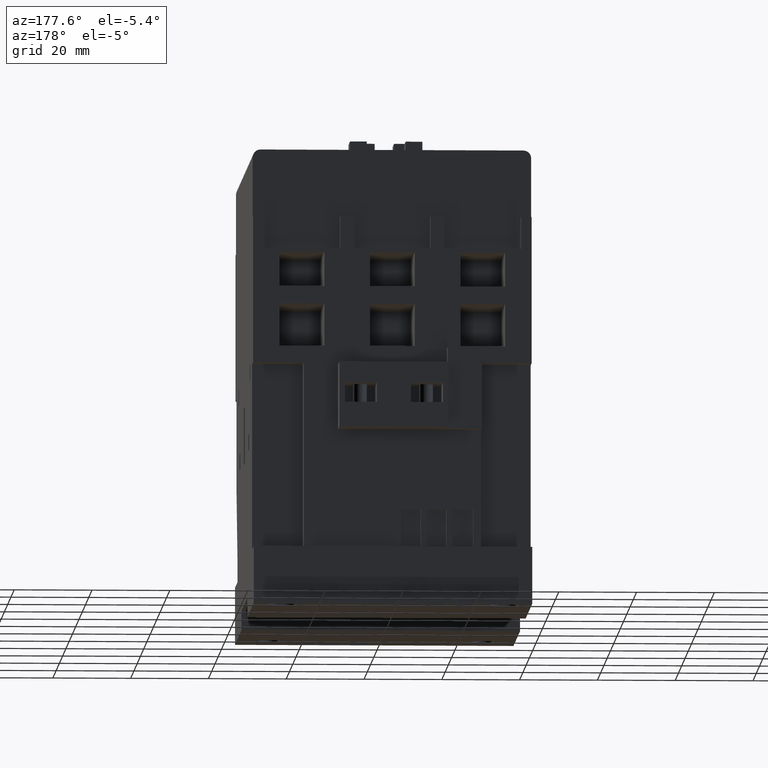
[diagram: clean part render]
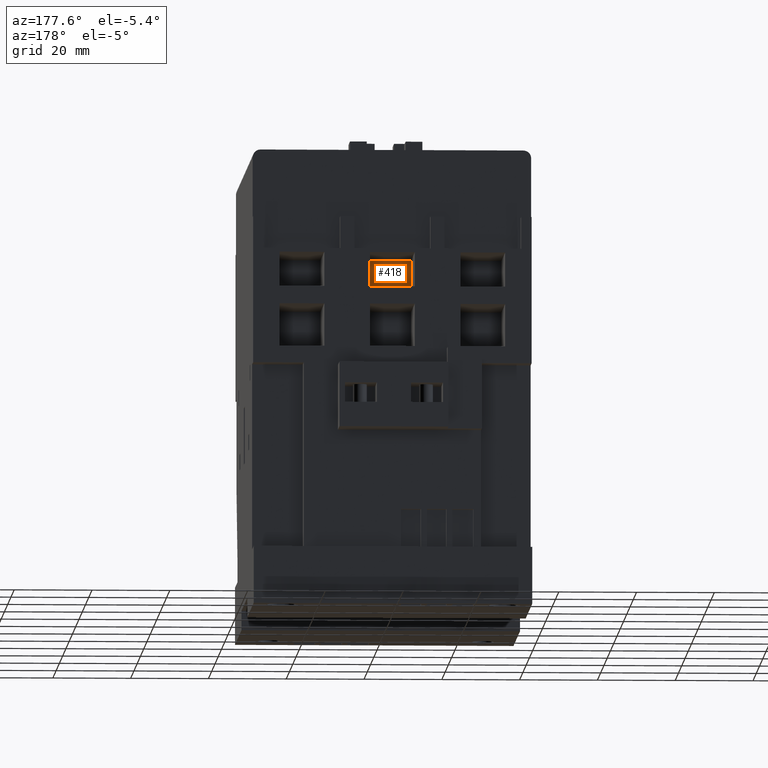
[diagram: same view with one face highlighted and labeled with its STEP entity id]
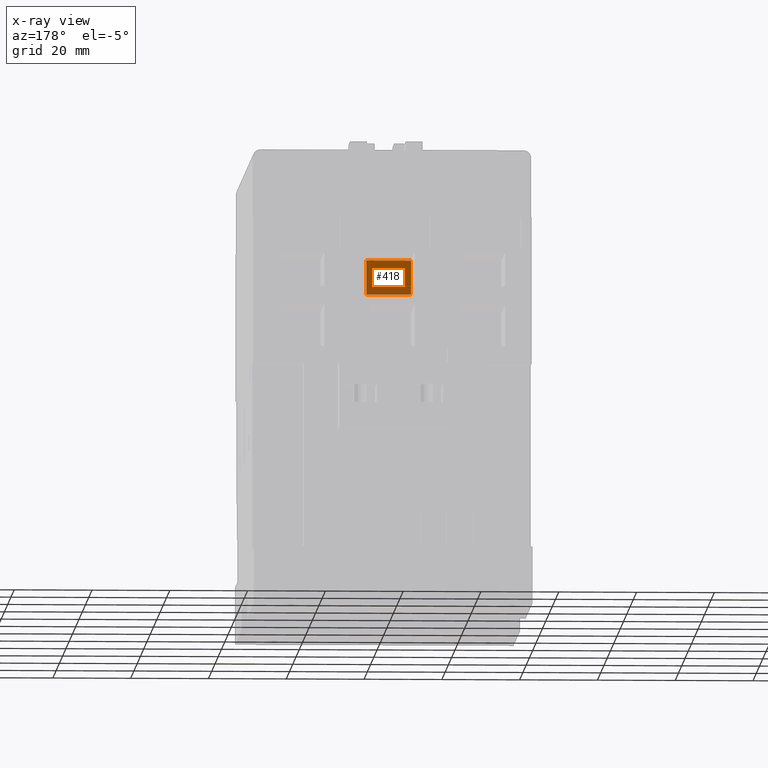
[diagram: x-ray of the same camera — body ghosted, the highlighted face saturated]
A machine part, auxiliary view. The second image highlights one B-rep face of the part: STEP entity #418.
The next image is the same camera in x-ray: the body ghosted, the highlighted face saturated — about 31% of this face is hidden behind the body in this view.
In plain terms, the highlighted planar face has unit normal (0, -1, 0).
Its self-contained STEP definition (entity closure, byte-faithful):
#418=ADVANCED_FACE('',(#1109),#782,.F.);
#782=PLANE('',#7298);
#1109=FACE_OUTER_BOUND('',#1523,.T.);
#1523=EDGE_LOOP('',(#2685,#2686,#2687,#2688));
#2685=ORIENTED_EDGE('',*,*,#4949,.T.);
#2686=ORIENTED_EDGE('',*,*,#4951,.T.);
#2687=ORIENTED_EDGE('',*,*,#4953,.T.);
#2688=ORIENTED_EDGE('',*,*,#4954,.T.);
#4180=VERTEX_POINT('',#10513);
#4181=VERTEX_POINT('',#10515);
#4182=VERTEX_POINT('',#10519);
#4183=VERTEX_POINT('',#10523);
#4949=EDGE_CURVE('',#4180,#4181,#5867,.T.);
#4951=EDGE_CURVE('',#4181,#4182,#5869,.T.);
#4953=EDGE_CURVE('',#4182,#4183,#5871,.T.);
#4954=EDGE_CURVE('',#4183,#4180,#5872,.T.);
#5867=LINE('',#10516,#6772);
#5869=LINE('',#10520,#6774);
#5871=LINE('',#10524,#6776);
#5872=LINE('',#10526,#6777);
#6772=VECTOR('',#8449,1.);
#6774=VECTOR('',#8453,1.);
#6776=VECTOR('',#8457,1.);
#6777=VECTOR('',#8460,1.);
#7298=AXIS2_PLACEMENT_3D('',#10528,#8463,#8464);
#8449=DIRECTION('',(-1.,-4.6858133692651E-015,7.50042948623774E-031));
#8453=DIRECTION('',(3.94255335449274E-016,3.20133513444395E-016,1.));
#8457=DIRECTION('',(1.,4.6858133692651E-015,-7.50042948623774E-031));
#8460=DIRECTION('',(7.50042948623774E-031,-3.20133513444393E-016,-1.));
#8463=DIRECTION('',(4.6858133692651E-015,-1.,3.20133513444393E-016));
#8464=DIRECTION('',(0.,3.19189119579733E-016,1.));
#10513=CARTESIAN_POINT('',(5.74999999999985,30.7000000000001,77.15));
#10515=CARTESIAN_POINT('',(-5.75000000000015,30.7,77.15));
#10516=CARTESIAN_POINT('',(5.74999999999985,30.7000000000001,77.15));
#10519=CARTESIAN_POINT('',(-5.75000000000015,30.7,85.95));
#10520=CARTESIAN_POINT('',(-5.75000000000015,30.7,77.15));
#10523=CARTESIAN_POINT('',(5.74999999999985,30.7000000000001,85.95));
#10524=CARTESIAN_POINT('',(-5.75000000000015,30.7,85.95));
#10526=CARTESIAN_POINT('',(5.74999999999985,30.7000000000001,85.95));
#10528=CARTESIAN_POINT('',(-5.75000000000015,30.7,77.15));